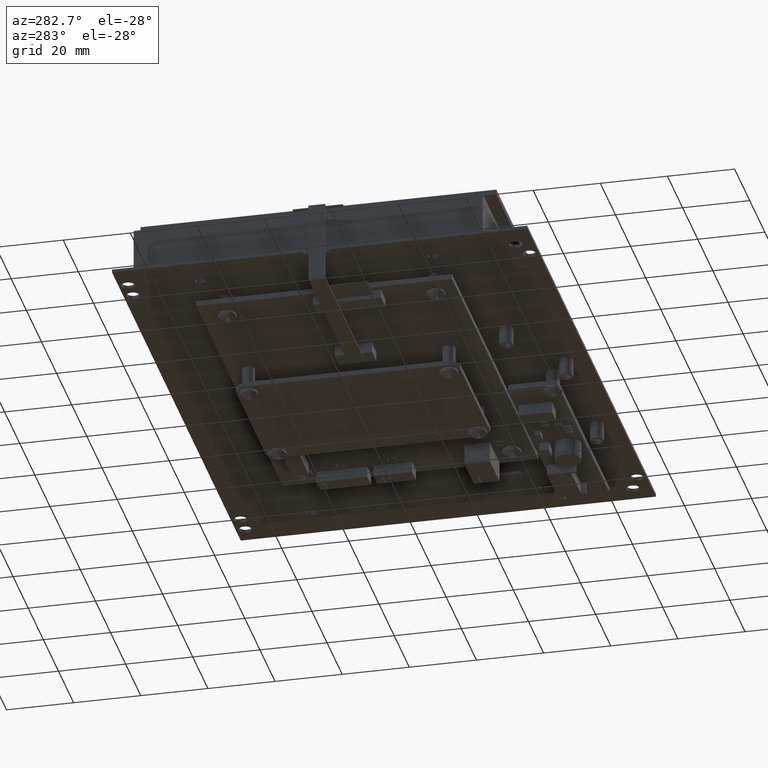
[diagram: clean part render]
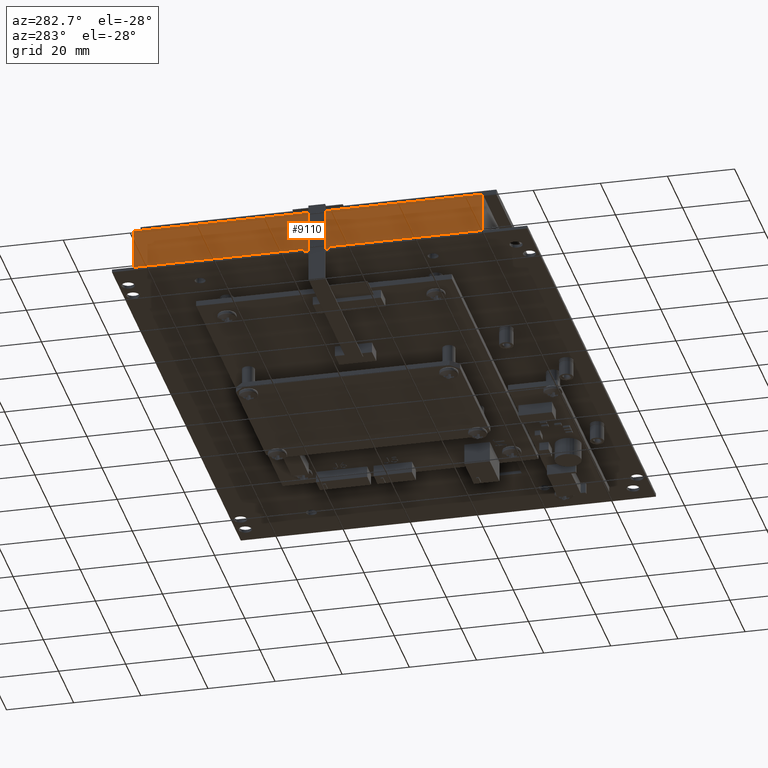
[diagram: same view with one face highlighted and labeled with its STEP entity id]
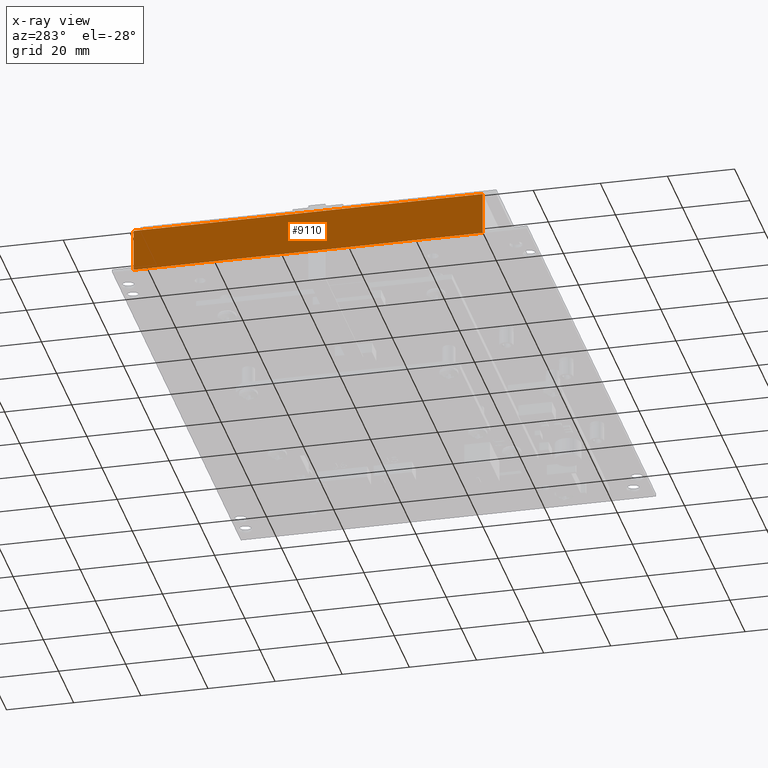
[diagram: x-ray of the same camera — body ghosted, the highlighted face saturated]
A machine part, auxiliary view. The second image highlights one B-rep face of the part: STEP entity #9110.
The next image is the same camera in x-ray: the body ghosted, the highlighted face saturated — about 0% of this face is hidden behind the body in this view.
In plain terms, the highlighted planar face has unit normal (1, 0, 0).
Its self-contained STEP definition (entity closure, byte-faithful):
#781 = CARTESIAN_POINT ( 'NONE',  ( -3.248031496062992600, 2.047244094488188400, 0.5039370078740157400 ) ) ;
#787 = FACE_OUTER_BOUND ( 'NONE', #22969, .T. ) ;
#788 = PLANE ( 'NONE',  #11757 ) ;
#790 = DIRECTION ( 'NONE',  ( 1.000000000000000000, 0.0000000000000000000, -0.0000000000000000000 ) ) ;
#791 = DIRECTION ( 'NONE',  ( -0.0000000000000000000, 0.0000000000000000000, -1.000000000000000000 ) ) ;
#9110 = ADVANCED_FACE ( 'NONE', ( #787 ), #788, .F. ) ;
#9426 = EDGE_CURVE ( 'NONE', #22635, #22667, #10145, .T. ) ;
#9434 = EDGE_CURVE ( 'NONE', #22669, #22667, #10170, .T. ) ;
#9435 = EDGE_CURVE ( 'NONE', #22675, #22669, #10180, .T. ) ;
#9436 = EDGE_CURVE ( 'NONE', #22675, #22635, #10173, .T. ) ;
#9877 = VECTOR ( 'NONE', #10156, 39.37007874015748100 ) ;
#9885 = VECTOR ( 'NONE', #10179, 39.37007874015748100 ) ;
#9886 = VECTOR ( 'NONE', #10185, 39.37007874015748100 ) ;
#9887 = VECTOR ( 'NONE', #10183, 39.37007874015748100 ) ;
#10145 = LINE ( 'NONE', #10146, #9877 ) ;
#10146 = CARTESIAN_POINT ( 'NONE',  ( -3.248031496062992600, 2.047244094488188400, 0.0000000000000000000 ) ) ;
#10156 = DIRECTION ( 'NONE',  ( 0.0000000000000000000, -1.000000000000000000, 0.0000000000000000000 ) ) ;
#10170 = LINE ( 'NONE', #10178, #9885 ) ;
#10173 = LINE ( 'NONE', #10184, #9886 ) ;
#10178 = CARTESIAN_POINT ( 'NONE',  ( -3.248031496062992600, -2.047244094488188900, 0.5039370078740157400 ) ) ;
#10179 = DIRECTION ( 'NONE',  ( -0.0000000000000000000, -0.0000000000000000000, -1.000000000000000000 ) ) ;
#10180 = LINE ( 'NONE', #10182, #9887 ) ;
#10182 = CARTESIAN_POINT ( 'NONE',  ( -3.248031496062992600, 2.047244094488188400, 0.5039370078740157400 ) ) ;
#10183 = DIRECTION ( 'NONE',  ( 0.0000000000000000000, -1.000000000000000000, 0.0000000000000000000 ) ) ;
#10184 = CARTESIAN_POINT ( 'NONE',  ( -3.248031496062992600, 2.047244094488188400, 0.5039370078740157400 ) ) ;
#10185 = DIRECTION ( 'NONE',  ( -0.0000000000000000000, -0.0000000000000000000, -1.000000000000000000 ) ) ;
#11757 = AXIS2_PLACEMENT_3D ( 'NONE', #781, #790, #791 ) ;
#15225 = ORIENTED_EDGE ( 'NONE', *, *, #9426, .T. ) ;
#15226 = ORIENTED_EDGE ( 'NONE', *, *, #9434, .F. ) ;
#15227 = ORIENTED_EDGE ( 'NONE', *, *, #9435, .F. ) ;
#15228 = ORIENTED_EDGE ( 'NONE', *, *, #9436, .T. ) ;
#19817 = CARTESIAN_POINT ( 'NONE',  ( -3.248031496062992600, 2.047244094488188400, 0.0000000000000000000 ) ) ;
#19849 = CARTESIAN_POINT ( 'NONE',  ( -3.248031496062992600, -2.047244094488188900, 0.0000000000000000000 ) ) ;
#19851 = CARTESIAN_POINT ( 'NONE',  ( -3.248031496062992600, -2.047244094488188900, 0.5039370078740157400 ) ) ;
#19857 = CARTESIAN_POINT ( 'NONE',  ( -3.248031496062992600, 2.047244094488188400, 0.5039370078740157400 ) ) ;
#22635 = VERTEX_POINT ( 'NONE', #19817 ) ;
#22667 = VERTEX_POINT ( 'NONE', #19849 ) ;
#22669 = VERTEX_POINT ( 'NONE', #19851 ) ;
#22675 = VERTEX_POINT ( 'NONE', #19857 ) ;
#22969 = EDGE_LOOP ( 'NONE', ( #15225, #15226, #15227, #15228 ) ) ;